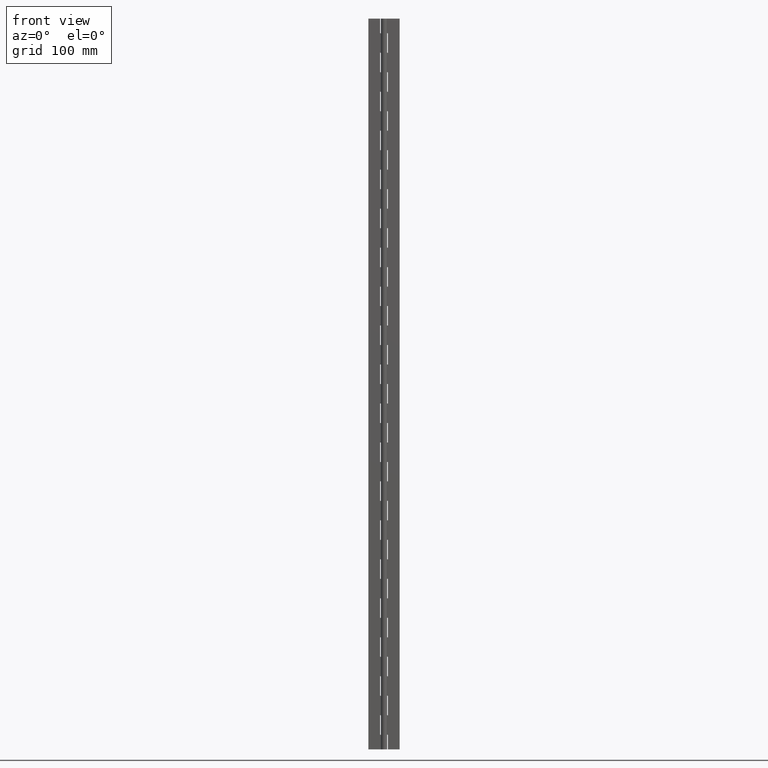
[diagram: clean part render]
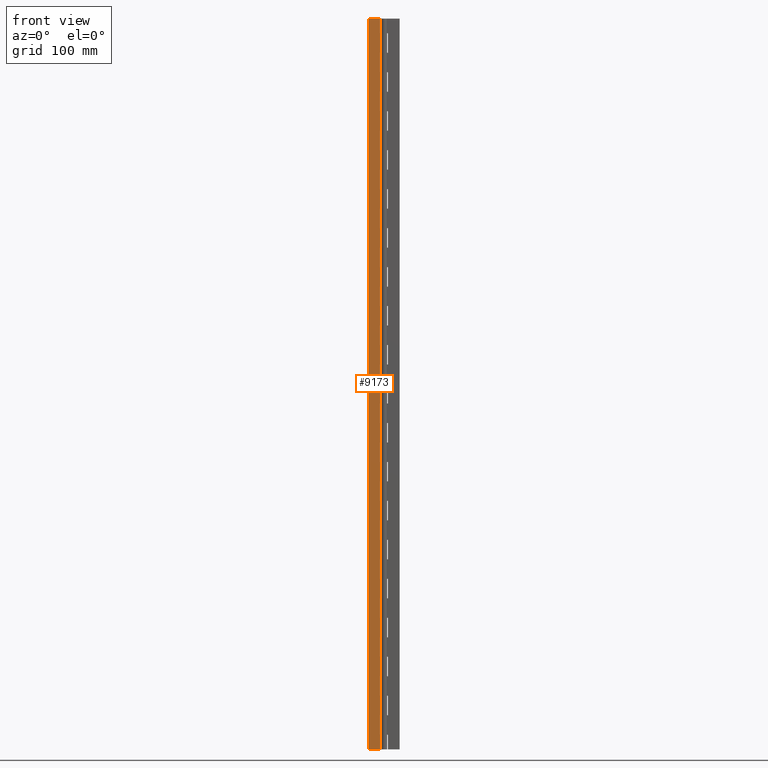
[diagram: same view with one face highlighted and labeled with its STEP entity id]
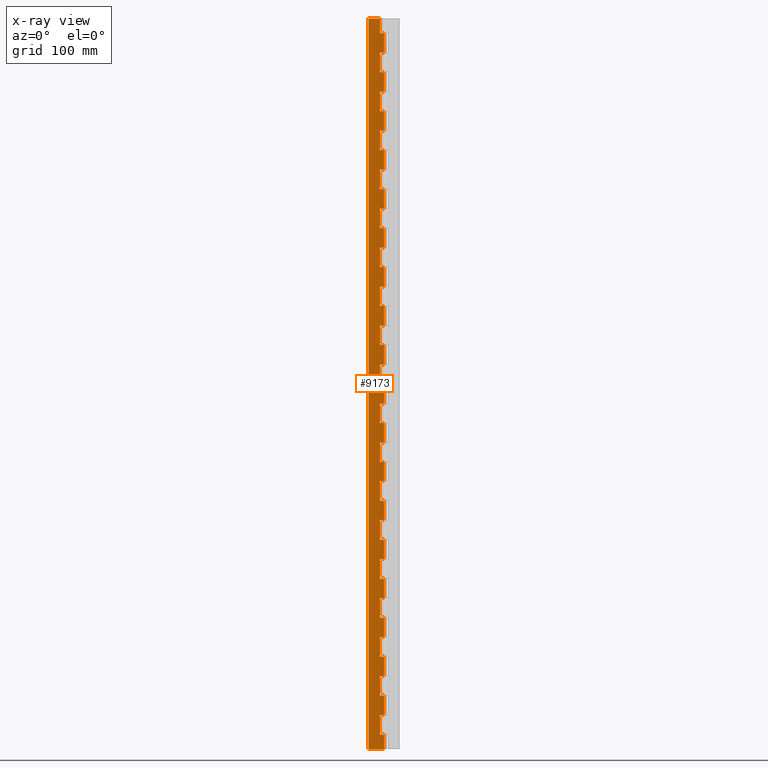
[diagram: x-ray of the same camera — body ghosted, the highlighted face saturated]
A machine part, front view. The second image highlights one B-rep face of the part: STEP entity #9173.
The next image is the same camera in x-ray: the body ghosted, the highlighted face saturated — about 0% of this face is hidden behind the body in this view.
In plain terms, the highlighted face is a freeform B-spline surface patch.
Its self-contained STEP definition (entity closure, byte-faithful):
#5577=CARTESIAN_POINT('',(-4.0,1.750000000000030,15.000021999999850));
#5578=VERTEX_POINT('',#5577);
#5584=CARTESIAN_POINT('',(0.0,1.750000000000000,15.000021999999850));
#5585=VERTEX_POINT('',#5584);
#5586=CARTESIAN_POINT('',(0.0,1.750000000000000,15.000021999999850));
#5587=CARTESIAN_POINT('',(-4.0,1.750000000000030,15.000021999999850));
#5588=QUASI_UNIFORM_CURVE('',1,(#5586,#5587),.UNSPECIFIED.,.F.,.U.);
#5589=EDGE_CURVE('',#5585,#5578,#5588,.T.);
#5655=CARTESIAN_POINT('',(0.0,1.750000000000000,35.000021999999852));
#5656=VERTEX_POINT('',#5655);
#5676=CARTESIAN_POINT('',(-4.0,1.750000000000030,35.000021999999852));
#5677=VERTEX_POINT('',#5676);
#5678=CARTESIAN_POINT('',(-4.0,1.750000000000030,35.000021999999852));
#5679=CARTESIAN_POINT('',(0.0,1.750000000000000,35.000021999999852));
#5680=QUASI_UNIFORM_CURVE('',1,(#5678,#5679),.UNSPECIFIED.,.F.,.U.);
#5681=EDGE_CURVE('',#5677,#5656,#5680,.T.);
#5710=CARTESIAN_POINT('',(-4.0,1.750000000000030,15.000021999999850));
#5711=CARTESIAN_POINT('',(-4.0,1.750000000000030,35.000021999999852));
#5712=QUASI_UNIFORM_CURVE('',1,(#5710,#5711),.UNSPECIFIED.,.F.,.U.);
#5713=EDGE_CURVE('',#5578,#5677,#5712,.T.);
#5753=CARTESIAN_POINT('',(-4.0,1.750000000000030,55.000021999999802));
#5754=VERTEX_POINT('',#5753);
#5760=CARTESIAN_POINT('',(0.0,1.750000000000000,55.000021999999802));
#5761=VERTEX_POINT('',#5760);
#5762=CARTESIAN_POINT('',(0.0,1.750000000000000,55.000021999999802));
#5763=CARTESIAN_POINT('',(-4.0,1.750000000000030,55.000021999999802));
#5764=QUASI_UNIFORM_CURVE('',1,(#5762,#5763),.UNSPECIFIED.,.F.,.U.);
#5765=EDGE_CURVE('',#5761,#5754,#5764,.T.);
#5831=CARTESIAN_POINT('',(0.0,1.750000000000000,75.000021999999802));
#5832=VERTEX_POINT('',#5831);
#5852=CARTESIAN_POINT('',(-4.0,1.750000000000030,75.000021999999802));
#5853=VERTEX_POINT('',#5852);
#5854=CARTESIAN_POINT('',(-4.0,1.750000000000030,75.000021999999802));
#5855=CARTESIAN_POINT('',(0.0,1.750000000000000,75.000021999999802));
#5856=QUASI_UNIFORM_CURVE('',1,(#5854,#5855),.UNSPECIFIED.,.F.,.U.);
#5857=EDGE_CURVE('',#5853,#5832,#5856,.T.);
#5886=CARTESIAN_POINT('',(-4.0,1.750000000000030,55.000021999999802));
#5887=CARTESIAN_POINT('',(-4.0,1.750000000000030,75.000021999999802));
#5888=QUASI_UNIFORM_CURVE('',1,(#5886,#5887),.UNSPECIFIED.,.F.,.U.);
#5889=EDGE_CURVE('',#5754,#5853,#5888,.T.);
#5929=CARTESIAN_POINT('',(-4.0,1.750000000000030,95.000021999999802));
#5930=VERTEX_POINT('',#5929);
#5936=CARTESIAN_POINT('',(0.0,1.750000000000000,95.000021999999802));
#5937=VERTEX_POINT('',#5936);
#5938=CARTESIAN_POINT('',(0.0,1.750000000000000,95.000021999999802));
#5939=CARTESIAN_POINT('',(-4.0,1.750000000000030,95.000021999999802));
#5940=QUASI_UNIFORM_CURVE('',1,(#5938,#5939),.UNSPECIFIED.,.F.,.U.);
#5941=EDGE_CURVE('',#5937,#5930,#5940,.T.);
#6007=CARTESIAN_POINT('',(0.0,1.750000000000000,115.000021999999800));
#6008=VERTEX_POINT('',#6007);
#6028=CARTESIAN_POINT('',(-4.0,1.750000000000030,115.000021999999800));
#6029=VERTEX_POINT('',#6028);
#6030=CARTESIAN_POINT('',(-4.0,1.750000000000030,115.000021999999800));
#6031=CARTESIAN_POINT('',(0.0,1.750000000000000,115.000021999999800));
#6032=QUASI_UNIFORM_CURVE('',1,(#6030,#6031),.UNSPECIFIED.,.F.,.U.);
#6033=EDGE_CURVE('',#6029,#6008,#6032,.T.);
#6062=CARTESIAN_POINT('',(-4.0,1.750000000000030,95.000021999999802));
#6063=CARTESIAN_POINT('',(-4.0,1.750000000000030,115.000021999999800));
#6064=QUASI_UNIFORM_CURVE('',1,(#6062,#6063),.UNSPECIFIED.,.F.,.U.);
#6065=EDGE_CURVE('',#5930,#6029,#6064,.T.);
#6105=CARTESIAN_POINT('',(-4.0,1.750000000000030,135.000021999999800));
#6106=VERTEX_POINT('',#6105);
#6112=CARTESIAN_POINT('',(0.0,1.750000000000000,135.000021999999800));
#6113=VERTEX_POINT('',#6112);
#6114=CARTESIAN_POINT('',(0.0,1.750000000000000,135.000021999999800));
#6115=CARTESIAN_POINT('',(-4.0,1.750000000000030,135.000021999999800));
#6116=QUASI_UNIFORM_CURVE('',1,(#6114,#6115),.UNSPECIFIED.,.F.,.U.);
#6117=EDGE_CURVE('',#6113,#6106,#6116,.T.);
#6183=CARTESIAN_POINT('',(0.0,1.750000000000000,155.000022000000000));
#6184=VERTEX_POINT('',#6183);
#6204=CARTESIAN_POINT('',(-4.0,1.750000000000030,155.000022000000000));
#6205=VERTEX_POINT('',#6204);
#6206=CARTESIAN_POINT('',(-4.0,1.750000000000030,155.000022000000000));
#6207=CARTESIAN_POINT('',(0.0,1.750000000000000,155.000022000000000));
#6208=QUASI_UNIFORM_CURVE('',1,(#6206,#6207),.UNSPECIFIED.,.F.,.U.);
#6209=EDGE_CURVE('',#6205,#6184,#6208,.T.);
#6238=CARTESIAN_POINT('',(-4.0,1.750000000000030,135.000021999999800));
#6239=CARTESIAN_POINT('',(-4.0,1.750000000000030,155.000022000000000));
#6240=QUASI_UNIFORM_CURVE('',1,(#6238,#6239),.UNSPECIFIED.,.F.,.U.);
#6241=EDGE_CURVE('',#6106,#6205,#6240,.T.);
#6281=CARTESIAN_POINT('',(-4.0,1.750000000000030,175.000022000000000));
#6282=VERTEX_POINT('',#6281);
#6288=CARTESIAN_POINT('',(0.0,1.750000000000000,175.000022000000000));
#6289=VERTEX_POINT('',#6288);
#6290=CARTESIAN_POINT('',(0.0,1.750000000000000,175.000022000000000));
#6291=CARTESIAN_POINT('',(-4.0,1.750000000000030,175.000022000000000));
#6292=QUASI_UNIFORM_CURVE('',1,(#6290,#6291),.UNSPECIFIED.,.F.,.U.);
#6293=EDGE_CURVE('',#6289,#6282,#6292,.T.);
#6359=CARTESIAN_POINT('',(0.0,1.750000000000000,195.000022000000000));
#6360=VERTEX_POINT('',#6359);
#6380=CARTESIAN_POINT('',(-4.0,1.750000000000030,195.000022000000000));
#6381=VERTEX_POINT('',#6380);
#6382=CARTESIAN_POINT('',(-4.0,1.750000000000030,195.000022000000000));
#6383=CARTESIAN_POINT('',(0.0,1.750000000000000,195.000022000000000));
#6384=QUASI_UNIFORM_CURVE('',1,(#6382,#6383),.UNSPECIFIED.,.F.,.U.);
#6385=EDGE_CURVE('',#6381,#6360,#6384,.T.);
#6414=CARTESIAN_POINT('',(-4.0,1.750000000000030,175.000022000000000));
#6415=CARTESIAN_POINT('',(-4.0,1.750000000000030,195.000022000000000));
#6416=QUASI_UNIFORM_CURVE('',1,(#6414,#6415),.UNSPECIFIED.,.F.,.U.);
#6417=EDGE_CURVE('',#6282,#6381,#6416,.T.);
#6457=CARTESIAN_POINT('',(-4.0,1.750000000000030,215.000022000000000));
#6458=VERTEX_POINT('',#6457);
#6464=CARTESIAN_POINT('',(0.0,1.750000000000000,215.000022000000000));
#6465=VERTEX_POINT('',#6464);
#6466=CARTESIAN_POINT('',(0.0,1.750000000000000,215.000022000000000));
#6467=CARTESIAN_POINT('',(-4.0,1.750000000000030,215.000022000000000));
#6468=QUASI_UNIFORM_CURVE('',1,(#6466,#6467),.UNSPECIFIED.,.F.,.U.);
#6469=EDGE_CURVE('',#6465,#6458,#6468,.T.);
#6535=CARTESIAN_POINT('',(0.0,1.750000000000000,235.000022000000000));
#6536=VERTEX_POINT('',#6535);
#6556=CARTESIAN_POINT('',(-4.0,1.750000000000030,235.000022000000000));
#6557=VERTEX_POINT('',#6556);
#6558=CARTESIAN_POINT('',(-4.0,1.750000000000030,235.000022000000000));
#6559=CARTESIAN_POINT('',(0.0,1.750000000000000,235.000022000000000));
#6560=QUASI_UNIFORM_CURVE('',1,(#6558,#6559),.UNSPECIFIED.,.F.,.U.);
#6561=EDGE_CURVE('',#6557,#6536,#6560,.T.);
#6590=CARTESIAN_POINT('',(-4.0,1.750000000000030,215.000022000000000));
#6591=CARTESIAN_POINT('',(-4.0,1.750000000000030,235.000022000000000));
#6592=QUASI_UNIFORM_CURVE('',1,(#6590,#6591),.UNSPECIFIED.,.F.,.U.);
#6593=EDGE_CURVE('',#6458,#6557,#6592,.T.);
#6633=CARTESIAN_POINT('',(-4.0,1.750000000000030,255.000022000000000));
#6634=VERTEX_POINT('',#6633);
#6640=CARTESIAN_POINT('',(0.0,1.750000000000000,255.000022000000000));
#6641=VERTEX_POINT('',#6640);
#6642=CARTESIAN_POINT('',(0.0,1.750000000000000,255.000022000000000));
#6643=CARTESIAN_POINT('',(-4.0,1.750000000000030,255.000022000000000));
#6644=QUASI_UNIFORM_CURVE('',1,(#6642,#6643),.UNSPECIFIED.,.F.,.U.);
#6645=EDGE_CURVE('',#6641,#6634,#6644,.T.);
#6711=CARTESIAN_POINT('',(0.0,1.750000000000000,275.000022000000000));
#6712=VERTEX_POINT('',#6711);
#6732=CARTESIAN_POINT('',(-4.0,1.750000000000030,275.000022000000000));
#6733=VERTEX_POINT('',#6732);
#6734=CARTESIAN_POINT('',(-4.0,1.750000000000030,275.000022000000000));
#6735=CARTESIAN_POINT('',(0.0,1.750000000000000,275.000022000000000));
#6736=QUASI_UNIFORM_CURVE('',1,(#6734,#6735),.UNSPECIFIED.,.F.,.U.);
#6737=EDGE_CURVE('',#6733,#6712,#6736,.T.);
#6766=CARTESIAN_POINT('',(-4.0,1.750000000000030,255.000022000000000));
#6767=CARTESIAN_POINT('',(-4.0,1.750000000000030,275.000022000000000));
#6768=QUASI_UNIFORM_CURVE('',1,(#6766,#6767),.UNSPECIFIED.,.F.,.U.);
#6769=EDGE_CURVE('',#6634,#6733,#6768,.T.);
#6809=CARTESIAN_POINT('',(-4.0,1.750000000000030,295.000021999999890));
#6810=VERTEX_POINT('',#6809);
#6816=CARTESIAN_POINT('',(0.0,1.750000000000000,295.000021999999890));
#6817=VERTEX_POINT('',#6816);
#6818=CARTESIAN_POINT('',(0.0,1.750000000000000,295.000021999999890));
#6819=CARTESIAN_POINT('',(-4.0,1.750000000000030,295.000021999999890));
#6820=QUASI_UNIFORM_CURVE('',1,(#6818,#6819),.UNSPECIFIED.,.F.,.U.);
#6821=EDGE_CURVE('',#6817,#6810,#6820,.T.);
#6887=CARTESIAN_POINT('',(0.0,1.750000000000000,315.000022000000000));
#6888=VERTEX_POINT('',#6887);
#6908=CARTESIAN_POINT('',(-4.0,1.750000000000030,315.000022000000000));
#6909=VERTEX_POINT('',#6908);
#6910=CARTESIAN_POINT('',(-4.0,1.750000000000030,315.000022000000000));
#6911=CARTESIAN_POINT('',(0.0,1.750000000000000,315.000022000000000));
#6912=QUASI_UNIFORM_CURVE('',1,(#6910,#6911),.UNSPECIFIED.,.F.,.U.);
#6913=EDGE_CURVE('',#6909,#6888,#6912,.T.);
#6942=CARTESIAN_POINT('',(-4.0,1.750000000000030,295.000021999999890));
#6943=CARTESIAN_POINT('',(-4.0,1.750000000000030,315.000022000000000));
#6944=QUASI_UNIFORM_CURVE('',1,(#6942,#6943),.UNSPECIFIED.,.F.,.U.);
#6945=EDGE_CURVE('',#6810,#6909,#6944,.T.);
#6985=CARTESIAN_POINT('',(-4.0,1.750000000000030,335.000022000000000));
#6986=VERTEX_POINT('',#6985);
#6992=CARTESIAN_POINT('',(0.0,1.750000000000000,335.000022000000000));
#6993=VERTEX_POINT('',#6992);
#6994=CARTESIAN_POINT('',(0.0,1.750000000000000,335.000022000000000));
#6995=CARTESIAN_POINT('',(-4.0,1.750000000000030,335.000022000000000));
#6996=QUASI_UNIFORM_CURVE('',1,(#6994,#6995),.UNSPECIFIED.,.F.,.U.);
#6997=EDGE_CURVE('',#6993,#6986,#6996,.T.);
#7063=CARTESIAN_POINT('',(0.0,1.750000000000000,355.000022000000000));
#7064=VERTEX_POINT('',#7063);
#7084=CARTESIAN_POINT('',(-4.0,1.750000000000030,355.000022000000000));
#7085=VERTEX_POINT('',#7084);
#7086=CARTESIAN_POINT('',(-4.0,1.750000000000030,355.000022000000000));
#7087=CARTESIAN_POINT('',(0.0,1.750000000000000,355.000022000000000));
#7088=QUASI_UNIFORM_CURVE('',1,(#7086,#7087),.UNSPECIFIED.,.F.,.U.);
#7089=EDGE_CURVE('',#7085,#7064,#7088,.T.);
#7118=CARTESIAN_POINT('',(-4.0,1.750000000000030,335.000022000000000));
#7119=CARTESIAN_POINT('',(-4.0,1.750000000000030,355.000022000000000));
#7120=QUASI_UNIFORM_CURVE('',1,(#7118,#7119),.UNSPECIFIED.,.F.,.U.);
#7121=EDGE_CURVE('',#6986,#7085,#7120,.T.);
#7161=CARTESIAN_POINT('',(-4.0,1.750000000000030,375.000022000000000));
#7162=VERTEX_POINT('',#7161);
#7168=CARTESIAN_POINT('',(0.0,1.750000000000000,375.000022000000000));
#7169=VERTEX_POINT('',#7168);
#7170=CARTESIAN_POINT('',(0.0,1.750000000000000,375.000022000000000));
#7171=CARTESIAN_POINT('',(-4.0,1.750000000000030,375.000022000000000));
#7172=QUASI_UNIFORM_CURVE('',1,(#7170,#7171),.UNSPECIFIED.,.F.,.U.);
#7173=EDGE_CURVE('',#7169,#7162,#7172,.T.);
#7239=CARTESIAN_POINT('',(0.0,1.750000000000000,395.000022000000000));
#7240=VERTEX_POINT('',#7239);
#7260=CARTESIAN_POINT('',(-4.0,1.750000000000030,395.000022000000000));
#7261=VERTEX_POINT('',#7260);
#7262=CARTESIAN_POINT('',(-4.0,1.750000000000030,395.000022000000000));
#7263=CARTESIAN_POINT('',(0.0,1.750000000000000,395.000022000000000));
#7264=QUASI_UNIFORM_CURVE('',1,(#7262,#7263),.UNSPECIFIED.,.F.,.U.);
#7265=EDGE_CURVE('',#7261,#7240,#7264,.T.);
#7294=CARTESIAN_POINT('',(-4.0,1.750000000000030,375.000022000000000));
#7295=CARTESIAN_POINT('',(-4.0,1.750000000000030,395.000022000000000));
#7296=QUASI_UNIFORM_CURVE('',1,(#7294,#7295),.UNSPECIFIED.,.F.,.U.);
#7297=EDGE_CURVE('',#7162,#7261,#7296,.T.);
#7337=CARTESIAN_POINT('',(-4.0,1.750000000000030,415.000022000000000));
#7338=VERTEX_POINT('',#7337);
#7344=CARTESIAN_POINT('',(0.0,1.750000000000000,415.000022000000000));
#7345=VERTEX_POINT('',#7344);
#7346=CARTESIAN_POINT('',(0.0,1.750000000000000,415.000022000000000));
#7347=CARTESIAN_POINT('',(-4.0,1.750000000000030,415.000022000000000));
#7348=QUASI_UNIFORM_CURVE('',1,(#7346,#7347),.UNSPECIFIED.,.F.,.U.);
#7349=EDGE_CURVE('',#7345,#7338,#7348,.T.);
#7415=CARTESIAN_POINT('',(0.0,1.750000000000000,435.000022000000000));
#7416=VERTEX_POINT('',#7415);
#7436=CARTESIAN_POINT('',(-4.0,1.750000000000030,435.000022000000000));
#7437=VERTEX_POINT('',#7436);
#7438=CARTESIAN_POINT('',(-4.0,1.750000000000030,435.000022000000000));
#7439=CARTESIAN_POINT('',(0.0,1.750000000000000,435.000022000000000));
#7440=QUASI_UNIFORM_CURVE('',1,(#7438,#7439),.UNSPECIFIED.,.F.,.U.);
#7441=EDGE_CURVE('',#7437,#7416,#7440,.T.);
#7470=CARTESIAN_POINT('',(-4.0,1.750000000000030,415.000022000000000));
#7471=CARTESIAN_POINT('',(-4.0,1.750000000000030,435.000022000000000));
#7472=QUASI_UNIFORM_CURVE('',1,(#7470,#7471),.UNSPECIFIED.,.F.,.U.);
#7473=EDGE_CURVE('',#7338,#7437,#7472,.T.);
#7513=CARTESIAN_POINT('',(-4.0,1.750000000000030,455.000022000000000));
#7514=VERTEX_POINT('',#7513);
#7520=CARTESIAN_POINT('',(0.0,1.750000000000000,455.000022000000000));
#7521=VERTEX_POINT('',#7520);
#7522=CARTESIAN_POINT('',(0.0,1.750000000000000,455.000022000000000));
#7523=CARTESIAN_POINT('',(-4.0,1.750000000000030,455.000022000000000));
#7524=QUASI_UNIFORM_CURVE('',1,(#7522,#7523),.UNSPECIFIED.,.F.,.U.);
#7525=EDGE_CURVE('',#7521,#7514,#7524,.T.);
#7591=CARTESIAN_POINT('',(0.0,1.750000000000000,475.000022000000000));
#7592=VERTEX_POINT('',#7591);
#7612=CARTESIAN_POINT('',(-4.0,1.750000000000030,475.000022000000000));
#7613=VERTEX_POINT('',#7612);
#7614=CARTESIAN_POINT('',(-4.0,1.750000000000030,475.000022000000000));
#7615=CARTESIAN_POINT('',(0.0,1.750000000000000,475.000022000000000));
#7616=QUASI_UNIFORM_CURVE('',1,(#7614,#7615),.UNSPECIFIED.,.F.,.U.);
#7617=EDGE_CURVE('',#7613,#7592,#7616,.T.);
#7646=CARTESIAN_POINT('',(-4.0,1.750000000000030,455.000022000000000));
#7647=CARTESIAN_POINT('',(-4.0,1.750000000000030,475.000022000000000));
#7648=QUASI_UNIFORM_CURVE('',1,(#7646,#7647),.UNSPECIFIED.,.F.,.U.);
#7649=EDGE_CURVE('',#7514,#7613,#7648,.T.);
#7689=CARTESIAN_POINT('',(-4.0,1.750000000000030,495.000022000000000));
#7690=VERTEX_POINT('',#7689);
#7696=CARTESIAN_POINT('',(0.0,1.750000000000000,495.000022000000000));
#7697=VERTEX_POINT('',#7696);
#7698=CARTESIAN_POINT('',(0.0,1.750000000000000,495.000022000000000));
#7699=CARTESIAN_POINT('',(-4.0,1.750000000000030,495.000022000000000));
#7700=QUASI_UNIFORM_CURVE('',1,(#7698,#7699),.UNSPECIFIED.,.F.,.U.);
#7701=EDGE_CURVE('',#7697,#7690,#7700,.T.);
#7767=CARTESIAN_POINT('',(0.0,1.750000000000000,515.000021999999940));
#7768=VERTEX_POINT('',#7767);
#7788=CARTESIAN_POINT('',(-4.0,1.750000000000030,515.000021999999940));
#7789=VERTEX_POINT('',#7788);
#7790=CARTESIAN_POINT('',(-4.0,1.750000000000030,515.000021999999940));
#7791=CARTESIAN_POINT('',(0.0,1.750000000000000,515.000021999999940));
#7792=QUASI_UNIFORM_CURVE('',1,(#7790,#7791),.UNSPECIFIED.,.F.,.U.);
#7793=EDGE_CURVE('',#7789,#7768,#7792,.T.);
#7822=CARTESIAN_POINT('',(-4.0,1.750000000000030,495.000022000000000));
#7823=CARTESIAN_POINT('',(-4.0,1.750000000000030,515.000021999999940));
#7824=QUASI_UNIFORM_CURVE('',1,(#7822,#7823),.UNSPECIFIED.,.F.,.U.);
#7825=EDGE_CURVE('',#7690,#7789,#7824,.T.);
#7865=CARTESIAN_POINT('',(-4.0,1.750000000000030,535.000021999999940));
#7866=VERTEX_POINT('',#7865);
#7872=CARTESIAN_POINT('',(0.0,1.750000000000000,535.000021999999940));
#7873=VERTEX_POINT('',#7872);
#7874=CARTESIAN_POINT('',(0.0,1.750000000000000,535.000021999999940));
#7875=CARTESIAN_POINT('',(-4.0,1.750000000000030,535.000021999999940));
#7876=QUASI_UNIFORM_CURVE('',1,(#7874,#7875),.UNSPECIFIED.,.F.,.U.);
#7877=EDGE_CURVE('',#7873,#7866,#7876,.T.);
#7943=CARTESIAN_POINT('',(0.0,1.750000000000000,555.000021999999940));
#7944=VERTEX_POINT('',#7943);
#7964=CARTESIAN_POINT('',(-4.0,1.750000000000030,555.000021999999940));
#7965=VERTEX_POINT('',#7964);
#7966=CARTESIAN_POINT('',(-4.0,1.750000000000030,555.000021999999940));
#7967=CARTESIAN_POINT('',(0.0,1.750000000000000,555.000021999999940));
#7968=QUASI_UNIFORM_CURVE('',1,(#7966,#7967),.UNSPECIFIED.,.F.,.U.);
#7969=EDGE_CURVE('',#7965,#7944,#7968,.T.);
#7998=CARTESIAN_POINT('',(-4.0,1.750000000000030,535.000021999999940));
#7999=CARTESIAN_POINT('',(-4.0,1.750000000000030,555.000021999999940));
#8000=QUASI_UNIFORM_CURVE('',1,(#7998,#7999),.UNSPECIFIED.,.F.,.U.);
#8001=EDGE_CURVE('',#7866,#7965,#8000,.T.);
#8041=CARTESIAN_POINT('',(-4.0,1.750000000000030,575.000021999999940));
#8042=VERTEX_POINT('',#8041);
#8048=CARTESIAN_POINT('',(0.0,1.750000000000000,575.000021999999940));
#8049=VERTEX_POINT('',#8048);
#8050=CARTESIAN_POINT('',(0.0,1.750000000000000,575.000021999999940));
#8051=CARTESIAN_POINT('',(-4.0,1.750000000000030,575.000021999999940));
#8052=QUASI_UNIFORM_CURVE('',1,(#8050,#8051),.UNSPECIFIED.,.F.,.U.);
#8053=EDGE_CURVE('',#8049,#8042,#8052,.T.);
#8119=CARTESIAN_POINT('',(0.0,1.750000000000000,595.000022000000060));
#8120=VERTEX_POINT('',#8119);
#8140=CARTESIAN_POINT('',(-4.0,1.750000000000030,595.000022000000060));
#8141=VERTEX_POINT('',#8140);
#8142=CARTESIAN_POINT('',(-4.0,1.750000000000030,595.000022000000060));
#8143=CARTESIAN_POINT('',(0.0,1.750000000000000,595.000022000000060));
#8144=QUASI_UNIFORM_CURVE('',1,(#8142,#8143),.UNSPECIFIED.,.F.,.U.);
#8145=EDGE_CURVE('',#8141,#8120,#8144,.T.);
#8174=CARTESIAN_POINT('',(-4.0,1.750000000000030,575.000021999999940));
#8175=CARTESIAN_POINT('',(-4.0,1.750000000000030,595.000022000000060));
#8176=QUASI_UNIFORM_CURVE('',1,(#8174,#8175),.UNSPECIFIED.,.F.,.U.);
#8177=EDGE_CURVE('',#8042,#8141,#8176,.T.);
#8217=CARTESIAN_POINT('',(-4.0,1.750000000000030,615.000022000000060));
#8218=VERTEX_POINT('',#8217);
#8224=CARTESIAN_POINT('',(0.0,1.750000000000000,615.000022000000060));
#8225=VERTEX_POINT('',#8224);
#8226=CARTESIAN_POINT('',(0.0,1.750000000000000,615.000022000000060));
#8227=CARTESIAN_POINT('',(-4.0,1.750000000000030,615.000022000000060));
#8228=QUASI_UNIFORM_CURVE('',1,(#8226,#8227),.UNSPECIFIED.,.F.,.U.);
#8229=EDGE_CURVE('',#8225,#8218,#8228,.T.);
#8295=CARTESIAN_POINT('',(0.0,1.750000000000000,635.000022000000060));
#8296=VERTEX_POINT('',#8295);
#8316=CARTESIAN_POINT('',(-4.0,1.750000000000030,635.000022000000060));
#8317=VERTEX_POINT('',#8316);
#8318=CARTESIAN_POINT('',(-4.0,1.750000000000030,635.000022000000060));
#8319=CARTESIAN_POINT('',(0.0,1.750000000000000,635.000022000000060));
#8320=QUASI_UNIFORM_CURVE('',1,(#8318,#8319),.UNSPECIFIED.,.F.,.U.);
#8321=EDGE_CURVE('',#8317,#8296,#8320,.T.);
#8350=CARTESIAN_POINT('',(-4.0,1.750000000000030,615.000022000000060));
#8351=CARTESIAN_POINT('',(-4.0,1.750000000000030,635.000022000000060));
#8352=QUASI_UNIFORM_CURVE('',1,(#8350,#8351),.UNSPECIFIED.,.F.,.U.);
#8353=EDGE_CURVE('',#8218,#8317,#8352,.T.);
#8393=CARTESIAN_POINT('',(-4.0,1.750000000000030,655.000021999999940));
#8394=VERTEX_POINT('',#8393);
#8400=CARTESIAN_POINT('',(0.0,1.750000000000000,655.000021999999940));
#8401=VERTEX_POINT('',#8400);
#8402=CARTESIAN_POINT('',(0.0,1.750000000000000,655.000021999999940));
#8403=CARTESIAN_POINT('',(-4.0,1.750000000000030,655.000021999999940));
#8404=QUASI_UNIFORM_CURVE('',1,(#8402,#8403),.UNSPECIFIED.,.F.,.U.);
#8405=EDGE_CURVE('',#8401,#8394,#8404,.T.);
#8471=CARTESIAN_POINT('',(0.0,1.750000000000000,675.000021999999940));
#8472=VERTEX_POINT('',#8471);
#8492=CARTESIAN_POINT('',(-4.0,1.750000000000030,675.000021999999940));
#8493=VERTEX_POINT('',#8492);
#8494=CARTESIAN_POINT('',(-4.0,1.750000000000030,675.000021999999940));
#8495=CARTESIAN_POINT('',(0.0,1.750000000000000,675.000021999999940));
#8496=QUASI_UNIFORM_CURVE('',1,(#8494,#8495),.UNSPECIFIED.,.F.,.U.);
#8497=EDGE_CURVE('',#8493,#8472,#8496,.T.);
#8526=CARTESIAN_POINT('',(-4.0,1.750000000000030,655.000021999999940));
#8527=CARTESIAN_POINT('',(-4.0,1.750000000000030,675.000021999999940));
#8528=QUASI_UNIFORM_CURVE('',1,(#8526,#8527),.UNSPECIFIED.,.F.,.U.);
#8529=EDGE_CURVE('',#8394,#8493,#8528,.T.);
#8541=CARTESIAN_POINT('',(0.0,1.750000000000000,695.000021999999940));
#8542=VERTEX_POINT('',#8541);
#8597=CARTESIAN_POINT('',(-4.0,1.750000000000030,695.000021999999940));
#8598=VERTEX_POINT('',#8597);
#8604=CARTESIAN_POINT('',(0.0,1.750000000000000,695.000021999999940));
#8605=CARTESIAN_POINT('',(-4.0,1.750000000000030,695.000021999999940));
#8606=QUASI_UNIFORM_CURVE('',1,(#8604,#8605),.UNSPECIFIED.,.F.,.U.);
#8607=EDGE_CURVE('',#8542,#8598,#8606,.T.);
#8617=CARTESIAN_POINT('',(-4.0,1.750000000000030,715.000022000000060));
#8618=VERTEX_POINT('',#8617);
#8661=CARTESIAN_POINT('',(0.0,1.750000000000000,715.000022000000060));
#8662=VERTEX_POINT('',#8661);
#8682=CARTESIAN_POINT('',(-4.0,1.750000000000030,715.000022000000060));
#8683=CARTESIAN_POINT('',(0.0,1.750000000000000,715.000022000000060));
#8684=QUASI_UNIFORM_CURVE('',1,(#8682,#8683),.UNSPECIFIED.,.F.,.U.);
#8685=EDGE_CURVE('',#8618,#8662,#8684,.T.);
#8702=CARTESIAN_POINT('',(-4.0,1.750000000000030,695.000021999999940));
#8703=CARTESIAN_POINT('',(-4.0,1.750000000000030,715.000022000000060));
#8704=QUASI_UNIFORM_CURVE('',1,(#8702,#8703),.UNSPECIFIED.,.F.,.U.);
#8705=EDGE_CURVE('',#8598,#8618,#8704,.T.);
#8715=CARTESIAN_POINT('',(-4.0,1.750000000000030,735.000022000000060));
#8716=VERTEX_POINT('',#8715);
#8731=CARTESIAN_POINT('',(-4.0,1.750000000000030,750.000022000000060));
#8732=VERTEX_POINT('',#8731);
#8738=CARTESIAN_POINT('',(-4.0,1.750000000000030,735.000022000000060));
#8739=CARTESIAN_POINT('',(-4.0,1.750000000000030,750.000022000000060));
#8740=QUASI_UNIFORM_CURVE('',1,(#8738,#8739),.UNSPECIFIED.,.F.,.U.);
#8741=EDGE_CURVE('',#8716,#8732,#8740,.T.);
#8753=CARTESIAN_POINT('',(0.0,1.750000000000000,735.000022000000060));
#8754=VERTEX_POINT('',#8753);
#8808=CARTESIAN_POINT('',(0.0,1.750000000000000,735.000022000000060));
#8809=CARTESIAN_POINT('',(-4.0,1.750000000000030,735.000022000000060));
#8810=QUASI_UNIFORM_CURVE('',1,(#8808,#8809),.UNSPECIFIED.,.F.,.U.);
#8811=EDGE_CURVE('',#8754,#8716,#8810,.T.);
#8858=CARTESIAN_POINT('',(0.0,1.750000000000000,0.0));
#8859=VERTEX_POINT('',#8858);
#8879=CARTESIAN_POINT('',(-16.0,1.750000000000000,0.0));
#8880=VERTEX_POINT('',#8879);
#8881=CARTESIAN_POINT('',(-16.0,1.750000000000000,0.0));
#8882=CARTESIAN_POINT('',(0.0,1.750000000000000,0.0));
#8883=QUASI_UNIFORM_CURVE('',1,(#8881,#8882),.UNSPECIFIED.,.F.,.U.);
#8884=EDGE_CURVE('',#8880,#8859,#8883,.T.);
#8899=CARTESIAN_POINT('',(-16.0,1.750000000000000,750.000022000000060));
#8900=VERTEX_POINT('',#8899);
#8901=CARTESIAN_POINT('',(-16.0,1.750000000000000,750.000022000000060));
#8902=CARTESIAN_POINT('',(-4.0,1.750000000000030,750.000022000000060));
#8903=QUASI_UNIFORM_CURVE('',1,(#8901,#8902),.UNSPECIFIED.,.F.,.U.);
#8904=EDGE_CURVE('',#8900,#8732,#8903,.T.);
#9003=CARTESIAN_POINT('',(0.0,1.750000000000000,15.000021999999850));
#9004=CARTESIAN_POINT('',(0.0,1.750000000000000,0.0));
#9005=QUASI_UNIFORM_CURVE('',1,(#9003,#9004),.UNSPECIFIED.,.F.,.U.);
#9006=EDGE_CURVE('',#5585,#8859,#9005,.T.);
#9012=CARTESIAN_POINT('',(-16.799199968988891,1.750000000000000,-37.462496965727539));
#9013=CARTESIAN_POINT('',(-16.799199968988891,1.750000000000000,787.462485438114190));
#9014=CARTESIAN_POINT('',(0.799200398142338,1.750000000000000,-37.462496965727539));
#9015=CARTESIAN_POINT('',(0.799200398142338,1.750000000000000,787.462485438114190));
#9016=B_SPLINE_SURFACE_WITH_KNOTS('',1,1,((#9012,#9014),(#9013,#9015)),.UNSPECIFIED.,.F.,.F.,.U.,(2,2),(2,2),(0.0,824.924982403841680),(0.0,17.598400367131230),.UNSPECIFIED.);
#9017=ORIENTED_EDGE('',*,*,#5713,.T.);
#9018=ORIENTED_EDGE('',*,*,#5681,.T.);
#9019=CARTESIAN_POINT('',(0.0,1.750000000000000,55.000021999999802));
#9020=CARTESIAN_POINT('',(0.0,1.750000000000000,35.000021999999852));
#9021=QUASI_UNIFORM_CURVE('',1,(#9019,#9020),.UNSPECIFIED.,.F.,.U.);
#9022=EDGE_CURVE('',#5761,#5656,#9021,.T.);
#9023=ORIENTED_EDGE('',*,*,#9022,.F.);
#9024=ORIENTED_EDGE('',*,*,#5765,.T.);
#9025=ORIENTED_EDGE('',*,*,#5889,.T.);
#9026=ORIENTED_EDGE('',*,*,#5857,.T.);
#9027=CARTESIAN_POINT('',(0.0,1.750000000000000,95.000021999999802));
#9028=CARTESIAN_POINT('',(0.0,1.750000000000000,75.000021999999802));
#9029=QUASI_UNIFORM_CURVE('',1,(#9027,#9028),.UNSPECIFIED.,.F.,.U.);
#9030=EDGE_CURVE('',#5937,#5832,#9029,.T.);
#9031=ORIENTED_EDGE('',*,*,#9030,.F.);
#9032=ORIENTED_EDGE('',*,*,#5941,.T.);
#9033=ORIENTED_EDGE('',*,*,#6065,.T.);
#9034=ORIENTED_EDGE('',*,*,#6033,.T.);
#9035=CARTESIAN_POINT('',(0.0,1.750000000000000,135.000021999999800));
#9036=CARTESIAN_POINT('',(0.0,1.750000000000000,115.000021999999800));
#9037=QUASI_UNIFORM_CURVE('',1,(#9035,#9036),.UNSPECIFIED.,.F.,.U.);
#9038=EDGE_CURVE('',#6113,#6008,#9037,.T.);
#9039=ORIENTED_EDGE('',*,*,#9038,.F.);
#9040=ORIENTED_EDGE('',*,*,#6117,.T.);
#9041=ORIENTED_EDGE('',*,*,#6241,.T.);
#9042=ORIENTED_EDGE('',*,*,#6209,.T.);
#9043=CARTESIAN_POINT('',(0.0,1.750000000000000,175.000022000000000));
#9044=CARTESIAN_POINT('',(0.0,1.750000000000000,155.000022000000000));
#9045=QUASI_UNIFORM_CURVE('',1,(#9043,#9044),.UNSPECIFIED.,.F.,.U.);
#9046=EDGE_CURVE('',#6289,#6184,#9045,.T.);
#9047=ORIENTED_EDGE('',*,*,#9046,.F.);
#9048=ORIENTED_EDGE('',*,*,#6293,.T.);
#9049=ORIENTED_EDGE('',*,*,#6417,.T.);
#9050=ORIENTED_EDGE('',*,*,#6385,.T.);
#9051=CARTESIAN_POINT('',(0.0,1.750000000000000,215.000022000000000));
#9052=CARTESIAN_POINT('',(0.0,1.750000000000000,195.000022000000000));
#9053=QUASI_UNIFORM_CURVE('',1,(#9051,#9052),.UNSPECIFIED.,.F.,.U.);
#9054=EDGE_CURVE('',#6465,#6360,#9053,.T.);
#9055=ORIENTED_EDGE('',*,*,#9054,.F.);
#9056=ORIENTED_EDGE('',*,*,#6469,.T.);
#9057=ORIENTED_EDGE('',*,*,#6593,.T.);
#9058=ORIENTED_EDGE('',*,*,#6561,.T.);
#9059=CARTESIAN_POINT('',(0.0,1.750000000000000,255.000022000000000));
#9060=CARTESIAN_POINT('',(0.0,1.750000000000000,235.000022000000000));
#9061=QUASI_UNIFORM_CURVE('',1,(#9059,#9060),.UNSPECIFIED.,.F.,.U.);
#9062=EDGE_CURVE('',#6641,#6536,#9061,.T.);
#9063=ORIENTED_EDGE('',*,*,#9062,.F.);
#9064=ORIENTED_EDGE('',*,*,#6645,.T.);
#9065=ORIENTED_EDGE('',*,*,#6769,.T.);
#9066=ORIENTED_EDGE('',*,*,#6737,.T.);
#9067=CARTESIAN_POINT('',(0.0,1.750000000000000,295.000021999999890));
#9068=CARTESIAN_POINT('',(0.0,1.750000000000000,275.000022000000000));
#9069=QUASI_UNIFORM_CURVE('',1,(#9067,#9068),.UNSPECIFIED.,.F.,.U.);
#9070=EDGE_CURVE('',#6817,#6712,#9069,.T.);
#9071=ORIENTED_EDGE('',*,*,#9070,.F.);
#9072=ORIENTED_EDGE('',*,*,#6821,.T.);
#9073=ORIENTED_EDGE('',*,*,#6945,.T.);
#9074=ORIENTED_EDGE('',*,*,#6913,.T.);
#9075=CARTESIAN_POINT('',(0.0,1.750000000000000,335.000022000000000));
#9076=CARTESIAN_POINT('',(0.0,1.750000000000000,315.000022000000000));
#9077=QUASI_UNIFORM_CURVE('',1,(#9075,#9076),.UNSPECIFIED.,.F.,.U.);
#9078=EDGE_CURVE('',#6993,#6888,#9077,.T.);
#9079=ORIENTED_EDGE('',*,*,#9078,.F.);
#9080=ORIENTED_EDGE('',*,*,#6997,.T.);
#9081=ORIENTED_EDGE('',*,*,#7121,.T.);
#9082=ORIENTED_EDGE('',*,*,#7089,.T.);
#9083=CARTESIAN_POINT('',(0.0,1.750000000000000,375.000022000000000));
#9084=CARTESIAN_POINT('',(0.0,1.750000000000000,355.000022000000000));
#9085=QUASI_UNIFORM_CURVE('',1,(#9083,#9084),.UNSPECIFIED.,.F.,.U.);
#9086=EDGE_CURVE('',#7169,#7064,#9085,.T.);
#9087=ORIENTED_EDGE('',*,*,#9086,.F.);
#9088=ORIENTED_EDGE('',*,*,#7173,.T.);
#9089=ORIENTED_EDGE('',*,*,#7297,.T.);
#9090=ORIENTED_EDGE('',*,*,#7265,.T.);
#9091=CARTESIAN_POINT('',(0.0,1.750000000000000,415.000022000000000));
#9092=CARTESIAN_POINT('',(0.0,1.750000000000000,395.000022000000000));
#9093=QUASI_UNIFORM_CURVE('',1,(#9091,#9092),.UNSPECIFIED.,.F.,.U.);
#9094=EDGE_CURVE('',#7345,#7240,#9093,.T.);
#9095=ORIENTED_EDGE('',*,*,#9094,.F.);
#9096=ORIENTED_EDGE('',*,*,#7349,.T.);
#9097=ORIENTED_EDGE('',*,*,#7473,.T.);
#9098=ORIENTED_EDGE('',*,*,#7441,.T.);
#9099=CARTESIAN_POINT('',(0.0,1.750000000000000,455.000022000000000));
#9100=CARTESIAN_POINT('',(0.0,1.750000000000000,435.000022000000000));
#9101=QUASI_UNIFORM_CURVE('',1,(#9099,#9100),.UNSPECIFIED.,.F.,.U.);
#9102=EDGE_CURVE('',#7521,#7416,#9101,.T.);
#9103=ORIENTED_EDGE('',*,*,#9102,.F.);
#9104=ORIENTED_EDGE('',*,*,#7525,.T.);
#9105=ORIENTED_EDGE('',*,*,#7649,.T.);
#9106=ORIENTED_EDGE('',*,*,#7617,.T.);
#9107=CARTESIAN_POINT('',(0.0,1.750000000000000,495.000022000000000));
#9108=CARTESIAN_POINT('',(0.0,1.750000000000000,475.000022000000000));
#9109=QUASI_UNIFORM_CURVE('',1,(#9107,#9108),.UNSPECIFIED.,.F.,.U.);
#9110=EDGE_CURVE('',#7697,#7592,#9109,.T.);
#9111=ORIENTED_EDGE('',*,*,#9110,.F.);
#9112=ORIENTED_EDGE('',*,*,#7701,.T.);
#9113=ORIENTED_EDGE('',*,*,#7825,.T.);
#9114=ORIENTED_EDGE('',*,*,#7793,.T.);
#9115=CARTESIAN_POINT('',(0.0,1.750000000000000,535.000021999999940));
#9116=CARTESIAN_POINT('',(0.0,1.750000000000000,515.000021999999940));
#9117=QUASI_UNIFORM_CURVE('',1,(#9115,#9116),.UNSPECIFIED.,.F.,.U.);
#9118=EDGE_CURVE('',#7873,#7768,#9117,.T.);
#9119=ORIENTED_EDGE('',*,*,#9118,.F.);
#9120=ORIENTED_EDGE('',*,*,#7877,.T.);
#9121=ORIENTED_EDGE('',*,*,#8001,.T.);
#9122=ORIENTED_EDGE('',*,*,#7969,.T.);
#9123=CARTESIAN_POINT('',(0.0,1.750000000000000,575.000021999999940));
#9124=CARTESIAN_POINT('',(0.0,1.750000000000000,555.000021999999940));
#9125=QUASI_UNIFORM_CURVE('',1,(#9123,#9124),.UNSPECIFIED.,.F.,.U.);
#9126=EDGE_CURVE('',#8049,#7944,#9125,.T.);
#9127=ORIENTED_EDGE('',*,*,#9126,.F.);
#9128=ORIENTED_EDGE('',*,*,#8053,.T.);
#9129=ORIENTED_EDGE('',*,*,#8177,.T.);
#9130=ORIENTED_EDGE('',*,*,#8145,.T.);
#9131=CARTESIAN_POINT('',(0.0,1.750000000000000,615.000022000000060));
#9132=CARTESIAN_POINT('',(0.0,1.750000000000000,595.000022000000060));
#9133=QUASI_UNIFORM_CURVE('',1,(#9131,#9132),.UNSPECIFIED.,.F.,.U.);
#9134=EDGE_CURVE('',#8225,#8120,#9133,.T.);
#9135=ORIENTED_EDGE('',*,*,#9134,.F.);
#9136=ORIENTED_EDGE('',*,*,#8229,.T.);
#9137=ORIENTED_EDGE('',*,*,#8353,.T.);
#9138=ORIENTED_EDGE('',*,*,#8321,.T.);
#9139=CARTESIAN_POINT('',(0.0,1.750000000000000,655.000021999999940));
#9140=CARTESIAN_POINT('',(0.0,1.750000000000000,635.000022000000060));
#9141=QUASI_UNIFORM_CURVE('',1,(#9139,#9140),.UNSPECIFIED.,.F.,.U.);
#9142=EDGE_CURVE('',#8401,#8296,#9141,.T.);
#9143=ORIENTED_EDGE('',*,*,#9142,.F.);
#9144=ORIENTED_EDGE('',*,*,#8405,.T.);
#9145=ORIENTED_EDGE('',*,*,#8529,.T.);
#9146=ORIENTED_EDGE('',*,*,#8497,.T.);
#9147=CARTESIAN_POINT('',(0.0,1.750000000000000,695.000021999999940));
#9148=CARTESIAN_POINT('',(0.0,1.750000000000000,675.000021999999940));
#9149=QUASI_UNIFORM_CURVE('',1,(#9147,#9148),.UNSPECIFIED.,.F.,.U.);
#9150=EDGE_CURVE('',#8542,#8472,#9149,.T.);
#9151=ORIENTED_EDGE('',*,*,#9150,.F.);
#9152=ORIENTED_EDGE('',*,*,#8607,.T.);
#9153=ORIENTED_EDGE('',*,*,#8705,.T.);
#9154=ORIENTED_EDGE('',*,*,#8685,.T.);
#9155=CARTESIAN_POINT('',(0.0,1.750000000000000,735.000022000000060));
#9156=CARTESIAN_POINT('',(0.0,1.750000000000000,715.000022000000060));
#9157=QUASI_UNIFORM_CURVE('',1,(#9155,#9156),.UNSPECIFIED.,.F.,.U.);
#9158=EDGE_CURVE('',#8754,#8662,#9157,.T.);
#9159=ORIENTED_EDGE('',*,*,#9158,.F.);
#9160=ORIENTED_EDGE('',*,*,#8811,.T.);
#9161=ORIENTED_EDGE('',*,*,#8741,.T.);
#9162=ORIENTED_EDGE('',*,*,#8904,.F.);
#9163=CARTESIAN_POINT('',(-16.0,1.750000000000000,750.000022000000060));
#9164=CARTESIAN_POINT('',(-16.0,1.750000000000000,0.0));
#9165=QUASI_UNIFORM_CURVE('',1,(#9163,#9164),.UNSPECIFIED.,.F.,.U.);
#9166=EDGE_CURVE('',#8900,#8880,#9165,.T.);
#9167=ORIENTED_EDGE('',*,*,#9166,.T.);
#9168=ORIENTED_EDGE('',*,*,#8884,.T.);
#9169=ORIENTED_EDGE('',*,*,#9006,.F.);
#9170=ORIENTED_EDGE('',*,*,#5589,.T.);
#9171=EDGE_LOOP('',(#9017,#9018,#9023,#9024,#9025,#9026,#9031,#9032,#9033,#9034,#9039,#9040,#9041,#9042,#9047,#9048,#9049,#9050,#9055,#9056,#9057,#9058,#9063,#9064,#9065,#9066,#9071,#9072,#9073,#9074,#9079,#9080,#9081,#9082,#9087,#9088,#9089,#9090,#9095,#9096,#9097,#9098,#9103,#9104,#9105,#9106,#9111,#9112,#9113,#9114,#9119,#9120,#9121,#9122,#9127,#9128,#9129,#9130,#9135,#9136,#9137,#9138,#9143,#9144,#9145,#9146,#9151,#9152,#9153,#9154,#9159,#9160,#9161,#9162,#9167,#9168,#9169,#9170));
#9172=FACE_OUTER_BOUND('',#9171,.T.);
#9173=ADVANCED_FACE('',(#9172),#9016,.F.);